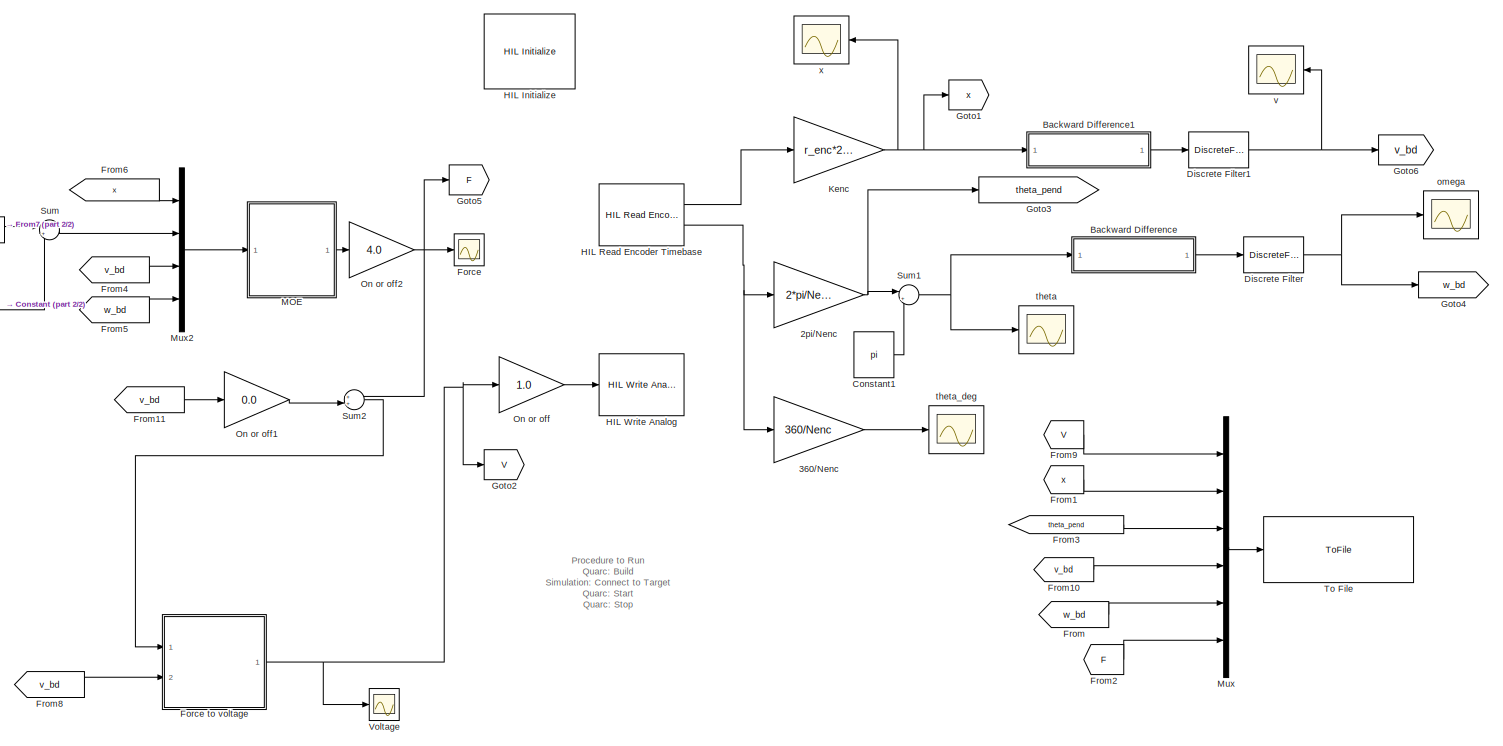
[diagram: root canvas - part 1/2, most of the canvas]
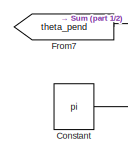
[diagram: root canvas - part 2/2, middle left region]
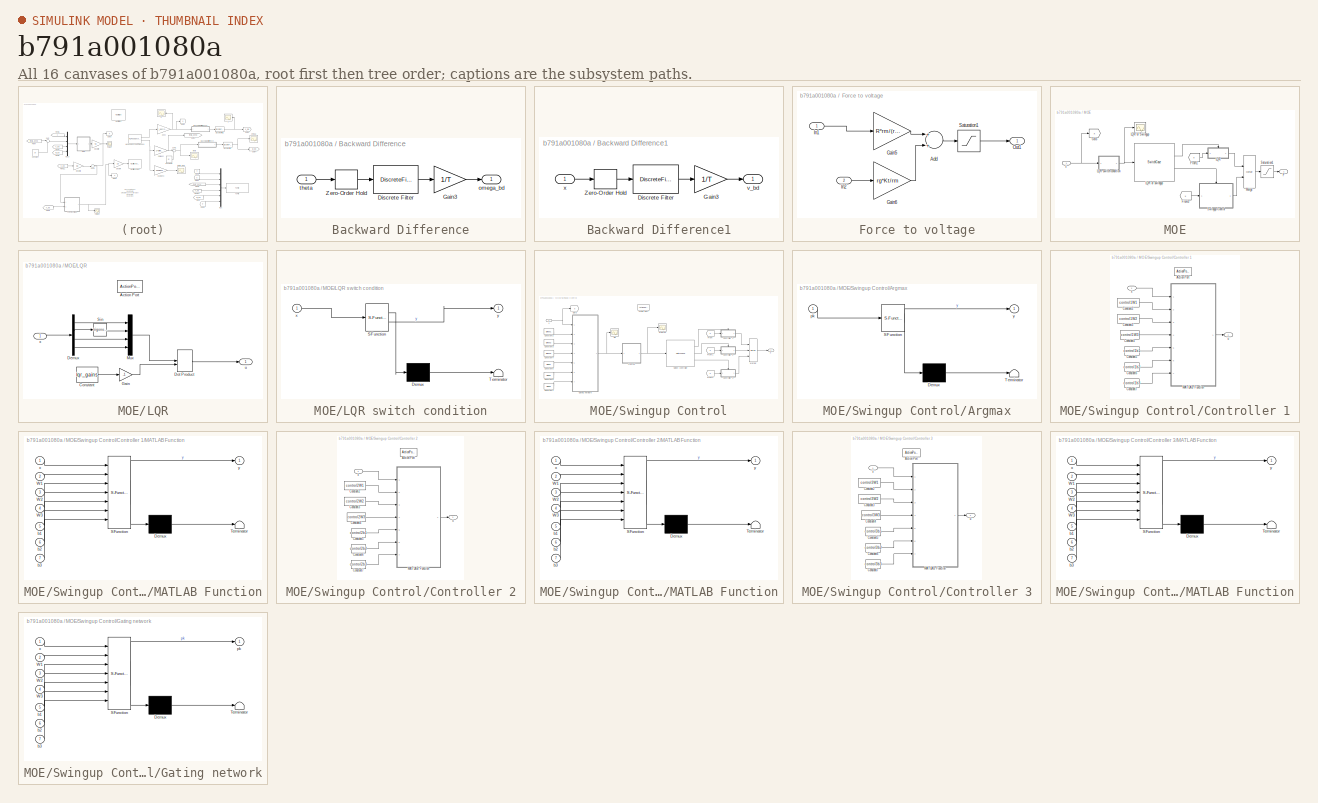
[diagram: thumbnail index - all 16 canvases of the model, root first then tree order]
MODEL slx_b791a001080a
KIND model
CONFIG AbsTol = auto
CONFIG EnableMultiTasking = off
CONFIG FixedStep = 0.001
CONFIG MaxStep = auto
CONFIG MinStep = auto
CONFIG RelTol = 1e-3
CONFIG SampleTimeConstraint = Unconstrained
CONFIG Solver = ode1
CONFIG SolverName = ode1
CONFIG StartTime = 0.0
CONFIG StopTime = inf
BLOCK [Gain] 2pi//Nenc
  Gain = 2*pi/Nenc
  OutDataTypeStr = Inherit: Inherit via internal rule
  ParamDataTypeStr = Inherit: Inherit via internal rule
  SaturateOnIntegerOverflow = off
BLOCK [Gain] 360//Nenc
  Gain = 360/Nenc
  OutDataTypeStr = Inherit: Inherit via internal rule
  ParamDataTypeStr = Inherit: Inherit via internal rule
  SaturateOnIntegerOverflow = off
BLOCK [SubSystem] Backward Difference
  Ports = [1, 1]
  RequestExecContextInheritance = off
BLOCK [DiscreteFilter] Backward Difference/Discrete Filter
  Denominator = [1  0]
  InputPortMap = u0
  Numerator = [1 -1]
  Ports = [1, 1]
BLOCK [Gain] Backward Difference/Gain3
  Gain = 1/T
BLOCK [ZeroOrderHold] Backward Difference/Zero-Order Hold
  SampleTime = T
BLOCK [Outport] Backward Difference/omega_bd
  IconDisplay = Port number
BLOCK [Inport] Backward Difference/theta
  IconDisplay = Port number
BLOCK [SubSystem] Backward Difference1
  Ports = [1, 1]
  RequestExecContextInheritance = off
BLOCK [DiscreteFilter] Backward Difference1/Discrete Filter
  Denominator = [1  0]
  InputPortMap = u0
  Numerator = [1 -1]
  Ports = [1, 1]
BLOCK [Gain] Backward Difference1/Gain3
  Gain = 1/T
BLOCK [ZeroOrderHold] Backward Difference1/Zero-Order Hold
  SampleTime = T
BLOCK [Outport] Backward Difference1/v_bd
  IconDisplay = Port number
BLOCK [Inport] Backward Difference1/x
  IconDisplay = Port number
BLOCK [Constant] Constant
  Value = pi
BLOCK [Constant] Constant1
  Value = pi
BLOCK [DiscreteFilter] Discrete Filter
  Denominator = af
  InputPortMap = u0
  Numerator = bf
  Ports = [1, 1]
BLOCK [DiscreteFilter] Discrete Filter1
  Denominator = af
  InputPortMap = u0
  Numerator = bf
  Ports = [1, 1]
BLOCK [Scope] Force
  Floating = off
  NumInputPorts = 1
  Ports = [1]
  ScopeSpecificationString = Simulink.scopes.TimeScopeBlockCfg('CurrentConfiguration', extmgr.ConfigurationSet(extmgr.Configuration('Core','General UI',true,'FigureColor',[0.501960784313725 0.501960784313725 0.501960784313725]),extmgr.Configuration('Core','Source UI',true),extmgr.Configuration('Sources','WiredSimulink',true,'DataLoggingVariableName','ScopeData3','DataLoggingSaveFormat','StructureWithTime','DataLoggingDecimati...<+2843ch>
BLOCK [SubSystem] Force to voltage
  Ports = [2, 1]
  RequestExecContextInheritance = off
BLOCK [Sum] Force to voltage/Add
  InputSameDT = off
  OutDataTypeStr = Inherit: Inherit via internal rule
  Ports = [2, 1]
  SaturateOnIntegerOverflow = off
BLOCK [Gain] Force to voltage/Gain5
  Gain = R*rm/(rg*Kt)
BLOCK [Gain] Force to voltage/Gain6
  Gain = rg*Kt/rm
BLOCK [Inport] Force to voltage/In1
  IconDisplay = Port number
BLOCK [Inport] Force to voltage/In2
  IconDisplay = Port number
  Port = 2
BLOCK [Outport] Force to voltage/Out1
  IconDisplay = Port number
  VectorParamsAs1DForOutWhenUnconnected = on
BLOCK [Saturate] Force to voltage/Saturation1
  InputPortMap = u0
  LowerLimit = -Vmax
  Ports = [1, 1]
  UpperLimit = Vmax
BLOCK [From] From
  GotoTag = w_bd
BLOCK [From] From1
  GotoTag = x
BLOCK [From] From10
  GotoTag = v_bd
BLOCK [From] From11
  GotoTag = v_bd
BLOCK [From] From2
  GotoTag = F
BLOCK [From] From3
  GotoTag = theta_pend
BLOCK [From] From4
  GotoTag = v_bd
BLOCK [From] From5
  GotoTag = w_bd
BLOCK [From] From6
  GotoTag = x
BLOCK [From] From7
  GotoTag = theta_pend
BLOCK [From] From8
  GotoTag = v_bd
BLOCK [From] From9
  GotoTag = V
BLOCK [Goto] Goto1
  GotoTag = x
BLOCK [Goto] Goto2
  GotoTag = V
BLOCK [Goto] Goto3
  GotoTag = theta_pend
BLOCK [Goto] Goto4
  GotoTag = w_bd
BLOCK [Goto] Goto5
  GotoTag = F
BLOCK [Goto] Goto6
  GotoTag = v_bd
BLOCK [Reference] HIL Initialize  REF=quarc_library/Data Acquisition/Generic/Configuration/HIL Initialize
  AttributesFormatString = %<object_name> (%<board_type>-%<board_number>)
  Ports = []
  Priority = -99
  SourceBlock = quarc_library/Data Acquisition/Generic/Configuration/HIL Initialize
  SourceProductName = QUARC Targets
  SourceType = HIL Initialize
  UserDataPersistent = on
BLOCK [Reference] HIL Read Encoder Timebase  REF=quarc_library/Data Acquisition/Generic/Timebases/HIL Read Encoder
Timebase
  AttributesFormatString = (%<object_name>)
  Ports = [0, 2]
  SourceBlock = quarc_library/Data Acquisition/Generic/Timebases/HIL Read Encoder\nTimebase
  SourceProductName = QUARC Targets
  SourceType = HIL Read Encoder Timebase
  UserDataPersistent = on
BLOCK [Reference] HIL Write Analog  REF=quarc_library/Data Acquisition/Generic/Immediate I//O/HIL Write Analog
  AttributesFormatString = (%<object_name>)
  Ports = [1]
  SourceBlock = quarc_library/Data Acquisition/Generic/Immediate I//O/HIL Write Analog
  SourceProductName = QUARC Targets
  SourceType = HIL Write Analog
  UserDataPersistent = on
BLOCK [Gain] Kenc
  Gain = r_enc*2*pi/Nenc
  OutDataTypeStr = Inherit: Inherit via internal rule
  ParamDataTypeStr = Inherit: Inherit via internal rule
  SaturateOnIntegerOverflow = off
BLOCK [SubSystem] MOE
  Ports = [1, 1]
  RequestExecContextInheritance = off
BLOCK [Outport] MOE/F
  IconDisplay = Port number
BLOCK [From] MOE/From1
  GotoTag = x
BLOCK [From] MOE/From3
  GotoTag = x
BLOCK [Goto] MOE/Goto
  GotoTag = x
BLOCK [SubSystem] MOE/LQR
  Ports = [1, 1, 0, 0, 0, 0, 0, 1]
  RequestExecContextInheritance = off
  TreatAsAtomicUnit = on
BLOCK [Scope] MOE/LQR or Swingup
  Floating = off
  NumInputPorts = 1
  Ports = [1]
  ScopeSpecificationString = Simulink.scopes.TimeScopeBlockCfg('CurrentConfiguration', extmgr.ConfigurationSet(extmgr.Configuration('Core','General UI',true,'FigureColor',[0.501960784313725 0.501960784313725 0.501960784313725]),extmgr.Configuration('Core','Source UI',true),extmgr.Configuration('Sources','WiredSimulink',true,'DataLoggingVariableName','ScopeData1','DataLoggingSaveFormat','StructureWithTime','DataLoggingDecimati...<+2756ch>
BLOCK [SwitchCase] MOE/LQR or swingup
  CaseConditions = {1, 2}
  Ports = [1, 2]
  ShowDefaultCase = off
BLOCK [SubSystem] MOE/LQR switch condition
  ErrorFcn = Stateflow.Translate.translate
  PermitHierarchicalResolution = ExplicitOnly
  Ports = [1, 1]
  RequestExecContextInheritance = off
  SFBlockType = MATLAB Function
  TreatAsAtomicUnit = on
BLOCK [Demux] MOE/LQR switch condition/ Demux 
  DisplayOption = bar
  Outputs = 1
  Ports = [1, 1]
BLOCK [S-Function] MOE/LQR switch condition/ SFunction 
  EnableBusSupport = on
  FunctionName = sf_sfun
  PortCounts = [1 2]
  Ports = [1, 2]
  SFcnIsStateOwnerBlock = off
  SFunctionDeploymentMode = off
  Tag = Stateflow S-Function cartpole_MOE_2019a 2
BLOCK [Terminator] MOE/LQR switch condition/ Terminator 
BLOCK [Inport] MOE/LQR switch condition/x
  IconDisplay = Port number
BLOCK [Outport] MOE/LQR switch condition/y
  IconDisplay = Port number
  VectorParamsAs1DForOutWhenUnconnected = on
BLOCK [ActionPort] MOE/LQR/Action Port
  ActionPortLabel = case [ 1 ]:
BLOCK [Constant] MOE/LQR/Constant
  Value = lqr_gains
BLOCK [Demux] MOE/LQR/Demux
  DisplayOption = bar
  Ports = [1, 4]
BLOCK [DotProduct] MOE/LQR/Dot Product
  OutDataTypeStr = Inherit: Inherit via internal rule
BLOCK [Gain] MOE/LQR/Gain
  Gain = -1
  OutDataTypeStr = Inherit: Inherit via internal rule
  ParamDataTypeStr = Inherit: Inherit via internal rule
  SaturateOnIntegerOverflow = off
BLOCK [Mux] MOE/LQR/Mux
  DisplayOption = bar
  Ports = [4, 1]
BLOCK [Trigonometry] MOE/LQR/Sin
  Ports = [1, 1]
BLOCK [Outport] MOE/LQR/u
  IconDisplay = Port number
  VectorParamsAs1DForOutWhenUnconnected = on
BLOCK [Inport] MOE/LQR/x
  IconDisplay = Port number
BLOCK [Merge] MOE/Merge
  Ports = [2, 1]
BLOCK [Saturate] MOE/Saturation1
  InputPortMap = u0
  LowerLimit = -Fmax
  Ports = [1, 1]
  UpperLimit = Fmax
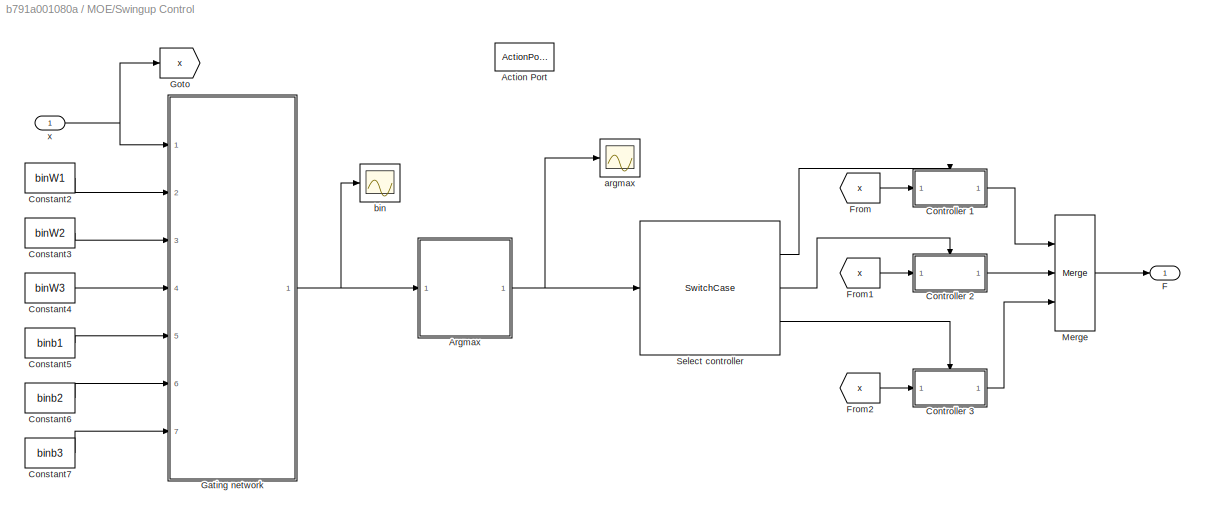
BLOCK [SubSystem] MOE/Swingup Control
  Ports = [1, 1, 0, 0, 0, 0, 0, 1]
  RequestExecContextInheritance = off
  TreatAsAtomicUnit = on
BLOCK [ActionPort] MOE/Swingup Control/Action Port
  ActionPortLabel = case [ 2 ]:
BLOCK [SubSystem] MOE/Swingup Control/Argmax
  ErrorFcn = Stateflow.Translate.translate
  PermitHierarchicalResolution = ExplicitOnly
  Ports = [1, 1]
  RequestExecContextInheritance = off
  SFBlockType = MATLAB Function
  TreatAsAtomicUnit = on
BLOCK [Demux] MOE/Swingup Control/Argmax/ Demux 
  DisplayOption = bar
  Outputs = 1
  Ports = [1, 1]
BLOCK [S-Function] MOE/Swingup Control/Argmax/ SFunction 
  EnableBusSupport = on
  FunctionName = sf_sfun
  PortCounts = [1 2]
  Ports = [1, 2]
  SFcnIsStateOwnerBlock = off
  SFunctionDeploymentMode = off
  Tag = Stateflow S-Function cartpole_MOE_2019a 6
BLOCK [Terminator] MOE/Swingup Control/Argmax/ Terminator 
BLOCK [Inport] MOE/Swingup Control/Argmax/pk
  IconDisplay = Port number
BLOCK [Outport] MOE/Swingup Control/Argmax/y
  IconDisplay = Port number
  VectorParamsAs1DForOutWhenUnconnected = on
BLOCK [Constant] MOE/Swingup Control/Constant2
  Value = binW1
BLOCK [Constant] MOE/Swingup Control/Constant3
  Value = binW2
BLOCK [Constant] MOE/Swingup Control/Constant4
  Value = binW3
BLOCK [Constant] MOE/Swingup Control/Constant5
  Value = binb1
BLOCK [Constant] MOE/Swingup Control/Constant6
  Value = binb2
BLOCK [Constant] MOE/Swingup Control/Constant7
  Value = binb3
BLOCK [SubSystem] MOE/Swingup Control/Controller 1
  Ports = [1, 1, 0, 0, 0, 0, 0, 1]
  RequestExecContextInheritance = off
  TreatAsAtomicUnit = on
BLOCK [ActionPort] MOE/Swingup Control/Controller 1/Action Port
  ActionPortLabel = case [ 1 ]:
BLOCK [Constant] MOE/Swingup Control/Controller 1/Constant2
  Value = control1W1
BLOCK [Constant] MOE/Swingup Control/Controller 1/Constant3
  Value = control1W2
BLOCK [Constant] MOE/Swingup Control/Controller 1/Constant4
  Value = control1W3
  VectorParams1D = off
BLOCK [Constant] MOE/Swingup Control/Controller 1/Constant5
  Value = control1b1
BLOCK [Constant] MOE/Swingup Control/Controller 1/Constant6
  Value = control1b2
BLOCK [Constant] MOE/Swingup Control/Controller 1/Constant7
  Value = control1b3
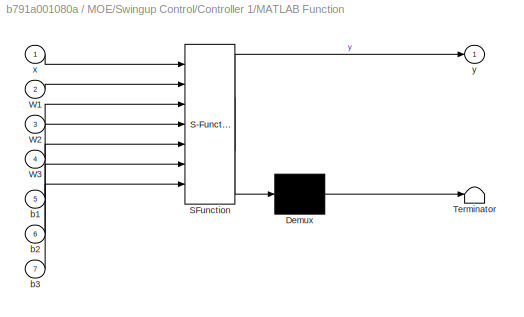
BLOCK [SubSystem] MOE/Swingup Control/Controller 1/MATLAB Function
  ErrorFcn = Stateflow.Translate.translate
  PermitHierarchicalResolution = ExplicitOnly
  Ports = [7, 1]
  RequestExecContextInheritance = off
  SFBlockType = MATLAB Function
  TreatAsAtomicUnit = on
BLOCK [Demux] MOE/Swingup Control/Controller 1/MATLAB Function/ Demux 
  DisplayOption = bar
  Outputs = 1
  Ports = [1, 1]
BLOCK [S-Function] MOE/Swingup Control/Controller 1/MATLAB Function/ SFunction 
  EnableBusSupport = on
  FunctionName = sf_sfun
  PortCounts = [7 2]
  Ports = [7, 2]
  SFcnIsStateOwnerBlock = off
  SFunctionDeploymentMode = off
  Tag = Stateflow S-Function cartpole_MOE_2019a 8
BLOCK [Terminator] MOE/Swingup Control/Controller 1/MATLAB Function/ Terminator 
BLOCK [Inport] MOE/Swingup Control/Controller 1/MATLAB Function/W1
  IconDisplay = Port number
  Port = 2
BLOCK [Inport] MOE/Swingup Control/Controller 1/MATLAB Function/W2
  IconDisplay = Port number
  Port = 3
BLOCK [Inport] MOE/Swingup Control/Controller 1/MATLAB Function/W3
  IconDisplay = Port number
  Port = 4
BLOCK [Inport] MOE/Swingup Control/Controller 1/MATLAB Function/b1
  IconDisplay = Port number
  Port = 5
BLOCK [Inport] MOE/Swingup Control/Controller 1/MATLAB Function/b2
  IconDisplay = Port number
  Port = 6
BLOCK [Inport] MOE/Swingup Control/Controller 1/MATLAB Function/b3
  IconDisplay = Port number
  Port = 7
BLOCK [Inport] MOE/Swingup Control/Controller 1/MATLAB Function/x
  IconDisplay = Port number
BLOCK [Outport] MOE/Swingup Control/Controller 1/MATLAB Function/y
  IconDisplay = Port number
  VectorParamsAs1DForOutWhenUnconnected = on
BLOCK [Outport] MOE/Swingup Control/Controller 1/u
  IconDisplay = Port number
  VectorParamsAs1DForOutWhenUnconnected = on
BLOCK [Inport] MOE/Swingup Control/Controller 1/x
  IconDisplay = Port number
BLOCK [SubSystem] MOE/Swingup Control/Controller 2
  Ports = [1, 1, 0, 0, 0, 0, 0, 1]
  RequestExecContextInheritance = off
  TreatAsAtomicUnit = on
BLOCK [ActionPort] MOE/Swingup Control/Controller 2/Action Port
  ActionPortLabel = case [ 2 ]:
BLOCK [Constant] MOE/Swingup Control/Controller 2/Constant2
  Value = control2W1
BLOCK [Constant] MOE/Swingup Control/Controller 2/Constant3
  Value = control2W2
BLOCK [Constant] MOE/Swingup Control/Controller 2/Constant4
  Value = control2W3
  VectorParams1D = off
BLOCK [Constant] MOE/Swingup Control/Controller 2/Constant5
  Value = control2b1
BLOCK [Constant] MOE/Swingup Control/Controller 2/Constant6
  Value = control2b2
BLOCK [Constant] MOE/Swingup Control/Controller 2/Constant7
  Value = control2b3
BLOCK [SubSystem] MOE/Swingup Control/Controller 2/MATLAB Function
  ErrorFcn = Stateflow.Translate.translate
  PermitHierarchicalResolution = ExplicitOnly
  Ports = [7, 1]
  RequestExecContextInheritance = off
  SFBlockType = MATLAB Function
  TreatAsAtomicUnit = on
BLOCK [Demux] MOE/Swingup Control/Controller 2/MATLAB Function/ Demux 
  DisplayOption = bar
  Outputs = 1
  Ports = [1, 1]
BLOCK [S-Function] MOE/Swingup Control/Controller 2/MATLAB Function/ SFunction 
  EnableBusSupport = on
  FunctionName = sf_sfun
  PortCounts = [7 2]
  Ports = [7, 2]
  SFcnIsStateOwnerBlock = off
  SFunctionDeploymentMode = off
  Tag = Stateflow S-Function cartpole_MOE_2019a 9
BLOCK [Terminator] MOE/Swingup Control/Controller 2/MATLAB Function/ Terminator 
BLOCK [Inport] MOE/Swingup Control/Controller 2/MATLAB Function/W1
  IconDisplay = Port number
  Port = 2
BLOCK [Inport] MOE/Swingup Control/Controller 2/MATLAB Function/W2
  IconDisplay = Port number
  Port = 3
BLOCK [Inport] MOE/Swingup Control/Controller 2/MATLAB Function/W3
  IconDisplay = Port number
  Port = 4
BLOCK [Inport] MOE/Swingup Control/Controller 2/MATLAB Function/b1
  IconDisplay = Port number
  Port = 5
BLOCK [Inport] MOE/Swingup Control/Controller 2/MATLAB Function/b2
  IconDisplay = Port number
  Port = 6
BLOCK [Inport] MOE/Swingup Control/Controller 2/MATLAB Function/b3
  IconDisplay = Port number
  Port = 7
BLOCK [Inport] MOE/Swingup Control/Controller 2/MATLAB Function/x
  IconDisplay = Port number
BLOCK [Outport] MOE/Swingup Control/Controller 2/MATLAB Function/y
  IconDisplay = Port number
  VectorParamsAs1DForOutWhenUnconnected = on
BLOCK [Outport] MOE/Swingup Control/Controller 2/u
  IconDisplay = Port number
  VectorParamsAs1DForOutWhenUnconnected = on
BLOCK [Inport] MOE/Swingup Control/Controller 2/x
  IconDisplay = Port number
BLOCK [SubSystem] MOE/Swingup Control/Controller 3
  Ports = [1, 1, 0, 0, 0, 0, 0, 1]
  RequestExecContextInheritance = off
  TreatAsAtomicUnit = on
BLOCK [ActionPort] MOE/Swingup Control/Controller 3/Action Port
  ActionPortLabel = case [ 3 ]:
BLOCK [Constant] MOE/Swingup Control/Controller 3/Constant2
  Value = control3W1
BLOCK [Constant] MOE/Swingup Control/Controller 3/Constant3
  Value = control3W2
BLOCK [Constant] MOE/Swingup Control/Controller 3/Constant4
  Value = control3W3
  VectorParams1D = off
BLOCK [Constant] MOE/Swingup Control/Controller 3/Constant5
  Value = control3b1
BLOCK [Constant] MOE/Swingup Control/Controller 3/Constant6
  Value = control3b2
BLOCK [Constant] MOE/Swingup Control/Controller 3/Constant7
  Value = control3b3
BLOCK [SubSystem] MOE/Swingup Control/Controller 3/MATLAB Function
  ErrorFcn = Stateflow.Translate.translate
  PermitHierarchicalResolution = ExplicitOnly
  Ports = [7, 1]
  RequestExecContextInheritance = off
  SFBlockType = MATLAB Function
  TreatAsAtomicUnit = on
BLOCK [Demux] MOE/Swingup Control/Controller 3/MATLAB Function/ Demux 
  DisplayOption = bar
  Outputs = 1
  Ports = [1, 1]
BLOCK [S-Function] MOE/Swingup Control/Controller 3/MATLAB Function/ SFunction 
  EnableBusSupport = on
  FunctionName = sf_sfun
  PortCounts = [7 2]
  Ports = [7, 2]
  SFcnIsStateOwnerBlock = off
  SFunctionDeploymentMode = off
  Tag = Stateflow S-Function cartpole_MOE_2019a 10
BLOCK [Terminator] MOE/Swingup Control/Controller 3/MATLAB Function/ Terminator 
BLOCK [Inport] MOE/Swingup Control/Controller 3/MATLAB Function/W1
  IconDisplay = Port number
  Port = 2
BLOCK [Inport] MOE/Swingup Control/Controller 3/MATLAB Function/W2
  IconDisplay = Port number
  Port = 3
BLOCK [Inport] MOE/Swingup Control/Controller 3/MATLAB Function/W3
  IconDisplay = Port number
  Port = 4
BLOCK [Inport] MOE/Swingup Control/Controller 3/MATLAB Function/b1
  IconDisplay = Port number
  Port = 5
BLOCK [Inport] MOE/Swingup Control/Controller 3/MATLAB Function/b2
  IconDisplay = Port number
  Port = 6
BLOCK [Inport] MOE/Swingup Control/Controller 3/MATLAB Function/b3
  IconDisplay = Port number
  Port = 7
BLOCK [Inport] MOE/Swingup Control/Controller 3/MATLAB Function/x
  IconDisplay = Port number
BLOCK [Outport] MOE/Swingup Control/Controller 3/MATLAB Function/y
  IconDisplay = Port number
  VectorParamsAs1DForOutWhenUnconnected = on
BLOCK [Outport] MOE/Swingup Control/Controller 3/u
  IconDisplay = Port number
  VectorParamsAs1DForOutWhenUnconnected = on
BLOCK [Inport] MOE/Swingup Control/Controller 3/x
  IconDisplay = Port number
BLOCK [Outport] MOE/Swingup Control/F
  IconDisplay = Port number
BLOCK [From] MOE/Swingup Control/From
  GotoTag = x
BLOCK [From] MOE/Swingup Control/From1
  GotoTag = x
BLOCK [From] MOE/Swingup Control/From2
  GotoTag = x
BLOCK [SubSystem] MOE/Swingup Control/Gating network
  ErrorFcn = Stateflow.Translate.translate
  PermitHierarchicalResolution = ExplicitOnly
  Ports = [7, 1]
  RequestExecContextInheritance = off
  SFBlockType = MATLAB Function
  TreatAsAtomicUnit = on
BLOCK [Demux] MOE/Swingup Control/Gating network/ Demux 
  DisplayOption = bar
  Outputs = 1
  Ports = [1, 1]
BLOCK [S-Function] MOE/Swingup Control/Gating network/ SFunction 
  EnableBusSupport = on
  FunctionName = sf_sfun
  PortCounts = [7 2]
  Ports = [7, 2]
  SFcnIsStateOwnerBlock = off
  SFunctionDeploymentMode = off
  Tag = Stateflow S-Function cartpole_MOE_2019a 7
BLOCK [Terminator] MOE/Swingup Control/Gating network/ Terminator 
BLOCK [Inport] MOE/Swingup Control/Gating network/W1
  IconDisplay = Port number
  Port = 2
BLOCK [Inport] MOE/Swingup Control/Gating network/W2
  IconDisplay = Port number
  Port = 3
BLOCK [Inport] MOE/Swingup Control/Gating network/W3
  IconDisplay = Port number
  Port = 4
BLOCK [Inport] MOE/Swingup Control/Gating network/b1
  IconDisplay = Port number
  Port = 5
BLOCK [Inport] MOE/Swingup Control/Gating network/b2
  IconDisplay = Port number
  Port = 6
BLOCK [Inport] MOE/Swingup Control/Gating network/b3
  IconDisplay = Port number
  Port = 7
BLOCK [Outport] MOE/Swingup Control/Gating network/pk
  IconDisplay = Port number
  VectorParamsAs1DForOutWhenUnconnected = on
BLOCK [Inport] MOE/Swingup Control/Gating network/x
  IconDisplay = Port number
BLOCK [Goto] MOE/Swingup Control/Goto
  GotoTag = x
BLOCK [Merge] MOE/Swingup Control/Merge
  Inputs = 3
  Ports = [3, 1]
BLOCK [SwitchCase] MOE/Swingup Control/Select controller
  CaseConditions = {1, 2, 3}
  Ports = [1, 3]
  ShowDefaultCase = off
BLOCK [Scope] MOE/Swingup Control/argmax
  Floating = off
  NumInputPorts = 1
  Ports = [1]
  ScopeSpecificationString = Simulink.scopes.TimeScopeBlockCfg('CurrentConfiguration', extmgr.ConfigurationSet(extmgr.Configuration('Core','General UI',true,'FigureColor',[0.501960784313725 0.501960784313725 0.501960784313725]),extmgr.Configuration('Core','Source UI',true),extmgr.Configuration('Sources','WiredSimulink',true,'DataLoggingVariableName','ScopeData1','DataLoggingSaveFormat','StructureWithTime','DataLoggingDecimati...<+2742ch>
BLOCK [Scope] MOE/Swingup Control/bin
  Floating = off
  NumInputPorts = 1
  Ports = [1]
  ScopeSpecificationString = Simulink.scopes.TimeScopeBlockCfg('CurrentConfiguration', extmgr.ConfigurationSet(extmgr.Configuration('Core','General UI',true,'FigureColor',[0.501960784313725 0.501960784313725 0.501960784313725]),extmgr.Configuration('Core','Source UI',true),extmgr.Configuration('Sources','WiredSimulink',true,'DataLoggingVariableName','ScopeData2','DataLoggingSaveFormat','StructureWithTime','DataLoggingDecimati...<+2897ch>
BLOCK [Inport] MOE/Swingup Control/x
  IconDisplay = Port number
BLOCK [Inport] MOE/x
  IconDisplay = Port number
BLOCK [Mux] Mux
  DisplayOption = bar
  Inputs = 6
  Ports = [6, 1]
BLOCK [Mux] Mux2
  DisplayOption = bar
  Ports = [4, 1]
BLOCK [Gain] On or off
  Gain = 1.0
  OutDataTypeStr = Inherit: Inherit via internal rule
  ParamDataTypeStr = Inherit: Inherit via internal rule
  SaturateOnIntegerOverflow = off
BLOCK [Gain] On or off1
  Gain = 0.0
  OutDataTypeStr = Inherit: Inherit via internal rule
  ParamDataTypeStr = Inherit: Inherit via internal rule
  SaturateOnIntegerOverflow = off
BLOCK [Gain] On or off2
  Gain = 4.0
  OutDataTypeStr = Inherit: Inherit via internal rule
  ParamDataTypeStr = Inherit: Inherit via internal rule
  SaturateOnIntegerOverflow = off
BLOCK [Sum] Sum
  IconShape = round
  InputSameDT = off
  Inputs = |++
  OutDataTypeStr = Inherit: Inherit via internal rule
  Ports = [2, 1]
  SaturateOnIntegerOverflow = off
BLOCK [Sum] Sum1
  IconShape = round
  InputSameDT = off
  Inputs = |++
  OutDataTypeStr = Inherit: Inherit via internal rule
  Ports = [2, 1]
  SaturateOnIntegerOverflow = off
BLOCK [Sum] Sum2
  IconShape = round
  InputSameDT = off
  Inputs = ++|
  OutDataTypeStr = Inherit: Inherit via internal rule
  Ports = [2, 1]
  SaturateOnIntegerOverflow = off
BLOCK [ToFile] To File
  Filename = cartpole_MOE.mat
  MatrixName = cart_data
  Ports = [1]
  SampleTime = T
BLOCK [Scope] Voltage
  Floating = off
  NumInputPorts = 1
  Ports = [1]
  ScopeSpecificationString = Simulink.scopes.TimeScopeBlockCfg('CurrentConfiguration', extmgr.ConfigurationSet(extmgr.Configuration('Core','General UI',true,'FigureColor',[0.501960784313725 0.501960784313725 0.501960784313725]),extmgr.Configuration('Core','Source UI',true),extmgr.Configuration('Sources','WiredSimulink',true,'DataLoggingVariableName','ScopeData2','DataLoggingSaveFormat','StructureWithTime','DataLoggingDecimati...<+2871ch>
BLOCK [Scope] omega
  Floating = off
  NumInputPorts = 1
  Ports = [1]
  ScopeSpecificationString = Simulink.scopes.TimeScopeBlockCfg('CurrentConfiguration', extmgr.ConfigurationSet(extmgr.Configuration('Core','General UI',true,'FigureColor',[0.8 0.8 0.8]),extmgr.Configuration('Core','Source UI',true),extmgr.Configuration('Sources','WiredSimulink',true,'DataLoggingVariableName','ScopeData2','DataLoggingSaveFormat','Array','DataLoggingDecimation','1','DataLoggingDecimateData',true),extmgr.Configu...<+2945ch>
BLOCK [Scope] theta
  Floating = off
  NumInputPorts = 1
  Ports = [1]
  ScopeSpecificationString = Simulink.scopes.TimeScopeBlockCfg('CurrentConfiguration', extmgr.ConfigurationSet(extmgr.Configuration('Core','General UI',true,'FigureColor',[0.501960784313725 0.501960784313725 0.501960784313725]),extmgr.Configuration('Core','Source UI',true),extmgr.Configuration('Sources','WiredSimulink',true,'DataLoggingVariableName','ScopeData1','DataLoggingSaveFormat','Array','DataLoggingDecimation','1','Dat...<+2840ch>
BLOCK [Scope] theta_deg
  Floating = off
  NumInputPorts = 1
  Ports = [1]
  ScopeSpecificationString = Simulink.scopes.TimeScopeBlockCfg('CurrentConfiguration', extmgr.ConfigurationSet(extmgr.Configuration('Core','General UI',true,'FigureColor',[0.501960784313725 0.501960784313725 0.501960784313725]),extmgr.Configuration('Core','Source UI',true),extmgr.Configuration('Sources','WiredSimulink',true,'DataLoggingVariableName','ScopeData4','DataLoggingSaveFormat','Array','DataLoggingDecimation','1','Dat...<+2688ch>
BLOCK [Scope] v
  Floating = off
  NumInputPorts = 1
  Ports = [1]
  ScopeSpecificationString = Simulink.scopes.TimeScopeBlockCfg('CurrentConfiguration', extmgr.ConfigurationSet(extmgr.Configuration('Core','General UI',true,'FigureColor',[0.501960784313725 0.501960784313725 0.501960784313725]),extmgr.Configuration('Core','Source UI',true),extmgr.Configuration('Sources','WiredSimulink',true,'DataLoggingVariableName','ScopeData1','DataLoggingSaveFormat','Array','DataLoggingDecimation','1','Dat...<+2214ch>
BLOCK [Scope] x
  Floating = off
  NumInputPorts = 1
  Ports = [1]
  ScopeSpecificationString = Simulink.scopes.TimeScopeBlockCfg('CurrentConfiguration', extmgr.ConfigurationSet(extmgr.Configuration('Core','General UI',true,'FigureColor',[0.501960784313725 0.501960784313725 0.501960784313725]),extmgr.Configuration('Core','Source UI',true),extmgr.Configuration('Sources','WiredSimulink',true,'DataLoggingVariableName','ScopeData3','DataLoggingSaveFormat','Array','DataLoggingDecimation','1','Dat...<+2964ch>
ANNOTATION (root): Procedure to Run Quarc: Build Simulation: Connect to Target Quarc: Start Quarc: Stop
NET 2pi//Nenc:1 -> Goto3:1, Sum1:1
LINE 360//Nenc:1 -> theta_deg:1
LINE Backward Difference/Discrete Filter:1 -> Backward Difference/Gain3:1
LINE Backward Difference/Gain3:1 -> Backward Difference/omega_bd:1
LINE Backward Difference/Zero-Order Hold:1 -> Backward Difference/Discrete Filter:1
LINE Backward Difference/theta:1 -> Backward Difference/Zero-Order Hold:1
LINE Backward Difference1/Discrete Filter:1 -> Backward Difference1/Gain3:1
LINE Backward Difference1/Gain3:1 -> Backward Difference1/v_bd:1
LINE Backward Difference1/Zero-Order Hold:1 -> Backward Difference1/Discrete Filter:1
LINE Backward Difference1/x:1 -> Backward Difference1/Zero-Order Hold:1
LINE Backward Difference1:1 -> Discrete Filter1:1
LINE Backward Difference:1 -> Discrete Filter:1
LINE Constant1:1 -> Sum1:2
LINE Constant:1 -> Sum:2
NET Discrete Filter1:1 -> Goto6:1, v:1
NET Discrete Filter:1 -> Goto4:1, omega:1
LINE Force to voltage/Add:1 -> Force to voltage/Saturation1:1
LINE Force to voltage/Gain5:1 -> Force to voltage/Add:1
LINE Force to voltage/Gain6:1 -> Force to voltage/Add:2
LINE Force to voltage/In1:1 -> Force to voltage/Gain5:1
LINE Force to voltage/In2:1 -> Force to voltage/Gain6:1
LINE Force to voltage/Saturation1:1 -> Force to voltage/Out1:1
NET Force to voltage:1 -> Goto2:1, On or off:1, Voltage:1
LINE From10:1 -> Mux:4
LINE From11:1 -> On or off1:1
LINE From1:1 -> Mux:2
LINE From2:1 -> Mux:6
LINE From3:1 -> Mux:3
LINE From4:1 -> Mux2:3
LINE From5:1 -> Mux2:4
LINE From6:1 -> Mux2:1
LINE From7:1 -> Sum:1
LINE From8:1 -> Force to voltage:2
LINE From9:1 -> Mux:1
LINE From:1 -> Mux:5
LINE HIL Read Encoder Timebase:1 -> Kenc:1
NET HIL Read Encoder Timebase:2 -> 2pi//Nenc:1, 360//Nenc:1
NET Kenc:1 -> Backward Difference1:1, Goto1:1, x:1
LINE MOE/From1:1 -> MOE/LQR:1
LINE MOE/From3:1 -> MOE/Swingup Control:1
LINE MOE/LQR or swingup:1 -> MOE/LQR:ifaction
LINE MOE/LQR or swingup:2 -> MOE/Swingup Control:ifaction
NET MOE/LQR switch condition:1 -> MOE/LQR or Swingup:1, MOE/LQR or swingup:1
LINE MOE/LQR/Constant:1 -> MOE/LQR/Gain:1
LINE MOE/LQR/Demux:1 -> MOE/LQR/Mux:1
LINE MOE/LQR/Demux:2 -> MOE/LQR/Sin:1
LINE MOE/LQR/Demux:3 -> MOE/LQR/Mux:3
LINE MOE/LQR/Demux:4 -> MOE/LQR/Mux:4
LINE MOE/LQR/Dot Product:1 -> MOE/LQR/u:1
LINE MOE/LQR/Gain:1 -> MOE/LQR/Dot Product:2
LINE MOE/LQR/Mux:1 -> MOE/LQR/Dot Product:1
LINE MOE/LQR/Sin:1 -> MOE/LQR/Mux:2
LINE MOE/LQR/x:1 -> MOE/LQR/Demux:1
LINE MOE/LQR:1 -> MOE/Merge:1
LINE MOE/Merge:1 -> MOE/Saturation1:1
LINE MOE/Saturation1:1 -> MOE/F:1
NET MOE/Swingup Control/Argmax:1 -> MOE/Swingup Control/Select controller:1, MOE/Swingup Control/argmax:1
LINE MOE/Swingup Control/Constant2:1 -> MOE/Swingup Control/Gating network:2
LINE MOE/Swingup Control/Constant3:1 -> MOE/Swingup Control/Gating network:3
LINE MOE/Swingup Control/Constant4:1 -> MOE/Swingup Control/Gating network:4
LINE MOE/Swingup Control/Constant5:1 -> MOE/Swingup Control/Gating network:5
LINE MOE/Swingup Control/Constant6:1 -> MOE/Swingup Control/Gating network:6
LINE MOE/Swingup Control/Constant7:1 -> MOE/Swingup Control/Gating network:7
LINE MOE/Swingup Control/Controller 1/Constant2:1 -> MOE/Swingup Control/Controller 1/MATLAB Function:2
LINE MOE/Swingup Control/Controller 1/Constant3:1 -> MOE/Swingup Control/Controller 1/MATLAB Function:3
LINE MOE/Swingup Control/Controller 1/Constant4:1 -> MOE/Swingup Control/Controller 1/MATLAB Function:4
LINE MOE/Swingup Control/Controller 1/Constant5:1 -> MOE/Swingup Control/Controller 1/MATLAB Function:5
LINE MOE/Swingup Control/Controller 1/Constant6:1 -> MOE/Swingup Control/Controller 1/MATLAB Function:6
LINE MOE/Swingup Control/Controller 1/Constant7:1 -> MOE/Swingup Control/Controller 1/MATLAB Function:7
LINE MOE/Swingup Control/Controller 1/MATLAB Function:1 -> MOE/Swingup Control/Controller 1/u:1
LINE MOE/Swingup Control/Controller 1/x:1 -> MOE/Swingup Control/Controller 1/MATLAB Function:1
LINE MOE/Swingup Control/Controller 1:1 -> MOE/Swingup Control/Merge:1
LINE MOE/Swingup Control/Controller 2/Constant2:1 -> MOE/Swingup Control/Controller 2/MATLAB Function:2
LINE MOE/Swingup Control/Controller 2/Constant3:1 -> MOE/Swingup Control/Controller 2/MATLAB Function:3
LINE MOE/Swingup Control/Controller 2/Constant4:1 -> MOE/Swingup Control/Controller 2/MATLAB Function:4
LINE MOE/Swingup Control/Controller 2/Constant5:1 -> MOE/Swingup Control/Controller 2/MATLAB Function:5
LINE MOE/Swingup Control/Controller 2/Constant6:1 -> MOE/Swingup Control/Controller 2/MATLAB Function:6
LINE MOE/Swingup Control/Controller 2/Constant7:1 -> MOE/Swingup Control/Controller 2/MATLAB Function:7
LINE MOE/Swingup Control/Controller 2/MATLAB Function:1 -> MOE/Swingup Control/Controller 2/u:1
LINE MOE/Swingup Control/Controller 2/x:1 -> MOE/Swingup Control/Controller 2/MATLAB Function:1
LINE MOE/Swingup Control/Controller 2:1 -> MOE/Swingup Control/Merge:2
LINE MOE/Swingup Control/Controller 3/Constant2:1 -> MOE/Swingup Control/Controller 3/MATLAB Function:2
LINE MOE/Swingup Control/Controller 3/Constant3:1 -> MOE/Swingup Control/Controller 3/MATLAB Function:3
LINE MOE/Swingup Control/Controller 3/Constant4:1 -> MOE/Swingup Control/Controller 3/MATLAB Function:4
LINE MOE/Swingup Control/Controller 3/Constant5:1 -> MOE/Swingup Control/Controller 3/MATLAB Function:5
LINE MOE/Swingup Control/Controller 3/Constant6:1 -> MOE/Swingup Control/Controller 3/MATLAB Function:6
LINE MOE/Swingup Control/Controller 3/Constant7:1 -> MOE/Swingup Control/Controller 3/MATLAB Function:7
LINE MOE/Swingup Control/Controller 3/MATLAB Function:1 -> MOE/Swingup Control/Controller 3/u:1
LINE MOE/Swingup Control/Controller 3/x:1 -> MOE/Swingup Control/Controller 3/MATLAB Function:1
LINE MOE/Swingup Control/Controller 3:1 -> MOE/Swingup Control/Merge:3
LINE MOE/Swingup Control/From1:1 -> MOE/Swingup Control/Controller 2:1
LINE MOE/Swingup Control/From2:1 -> MOE/Swingup Control/Controller 3:1
LINE MOE/Swingup Control/From:1 -> MOE/Swingup Control/Controller 1:1
NET MOE/Swingup Control/Gating network:1 -> MOE/Swingup Control/Argmax:1, MOE/Swingup Control/bin:1
LINE MOE/Swingup Control/Merge:1 -> MOE/Swingup Control/F:1
LINE MOE/Swingup Control/Select controller:1 -> MOE/Swingup Control/Controller 1:ifaction
LINE MOE/Swingup Control/Select controller:2 -> MOE/Swingup Control/Controller 2:ifaction
LINE MOE/Swingup Control/Select controller:3 -> MOE/Swingup Control/Controller 3:ifaction
NET MOE/Swingup Control/x:1 -> MOE/Swingup Control/Gating network:1, MOE/Swingup Control/Goto:1
LINE MOE/Swingup Control:1 -> MOE/Merge:2
NET MOE/x:1 -> MOE/Goto:1, MOE/LQR switch condition:1
LINE MOE:1 -> On or off2:1
LINE Mux2:1 -> MOE:1
LINE Mux:1 -> To File:1
LINE On or off1:1 -> Sum2:2
NET On or off2:1 -> Force:1, Goto5:1, Sum2:1
LINE On or off:1 -> HIL Write Analog:1
NET Sum1:1 -> Backward Difference:1, theta:1
LINE Sum2:1 -> Force to voltage:1
LINE Sum:1 -> Mux2:2
note: NET lines group one-source signal fan-out (src -> all destinations, sorted); 1:1 wires keep LINE
CHART MOE/LQR switch condition states=1 transitions=1
  STATE_LABEL 'eML_blk_kernel()'
  STATE_LABEL 'SCRIPT:\nfunction y = fcn(x)\n    z = [x(1); cos(x(2)); sin(x(2)); x(3); x(4)];\n    if ((1.0 - z(2)) <= (1.0 - cosd(15)) && (abs(z(5)) <= 1.5))\n        y = 1;      %use LQR\n    else\n        y = 2;      %use swingup control\n    end\n'
CHART MOE/Swingup Control/Argmax states=1 transitions=1
  STATE_LABEL 'eML_blk_kernel()'
  STATE_LABEL 'SCRIPT:\nfunction y = fcn(pk)\n    maxindex = 1;\n    for i = 1:length(pk)-1\n       if pk(i+1) > pk(maxindex)\n           maxindex = i+1;\n       end\n    end\ny = maxindex;\n'
CHART MOE/Swingup Control/Gating network states=1 transitions=1
  STATE_LABEL 'eML_blk_kernel()'
  STATE_LABEL 'SCRIPT:\nfunction pk = fcn(x, W1, W2, W3, b1, b2, b3)\n\n    z0 = [x(1); cos(x(2)); sin(x(2)); x(3); x(4)];\n    z1 = elu(W1*z0 + b1);\n    z2 = elu(W2*z1 + b2);\n    z3 = W3*z2 + b3;\n    pk = softmax(z3);\n    \nend\n    \nfunction y = softmax(x)\n    y = zeros(length(x));\n    for i =1:length(x)\n        y(i) = exp(x(i))/sum(exp(x));\n    end\nend'
CHART MOE/Swingup Control/Controller 1/MATLAB Function states=1 transitions=1
  STATE_LABEL 'eML_blk_kernel()'
  STATE_LABEL 'SCRIPT:\nfunction y = fcn(x, W1, W2, W3, b1, b2, b3)\n    z0 = [x(1); cos(x(2)); sin(x(2)); x(3); x(4)];\n    z1 = elu(W1*z0 + b1);\n    z2 = elu(W2*z1 + b2);\n    z3 = W3*z2 + b3;\ny = z3;\n'  <repeated x3 — deduplicated; at blocks: MATLAB Function>
CHART MOE/Swingup Control/Controller 2/MATLAB Function states=1 transitions=1
  STATE_LABEL 'eML_blk_kernel()'
CHART MOE/Swingup Control/Controller 3/MATLAB Function states=1 transitions=1
  STATE_LABEL 'eML_blk_kernel()'
